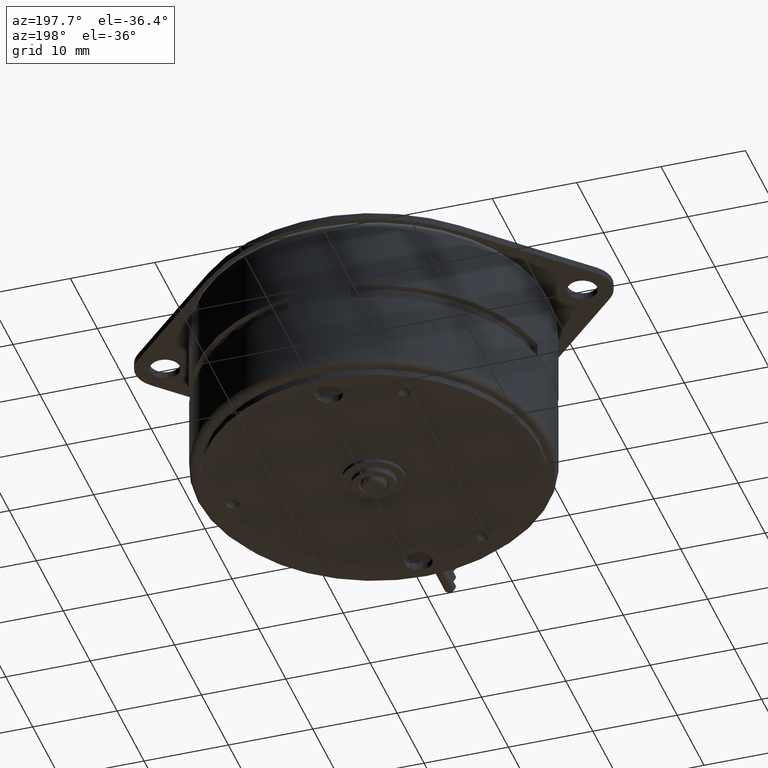
[diagram: clean part render]
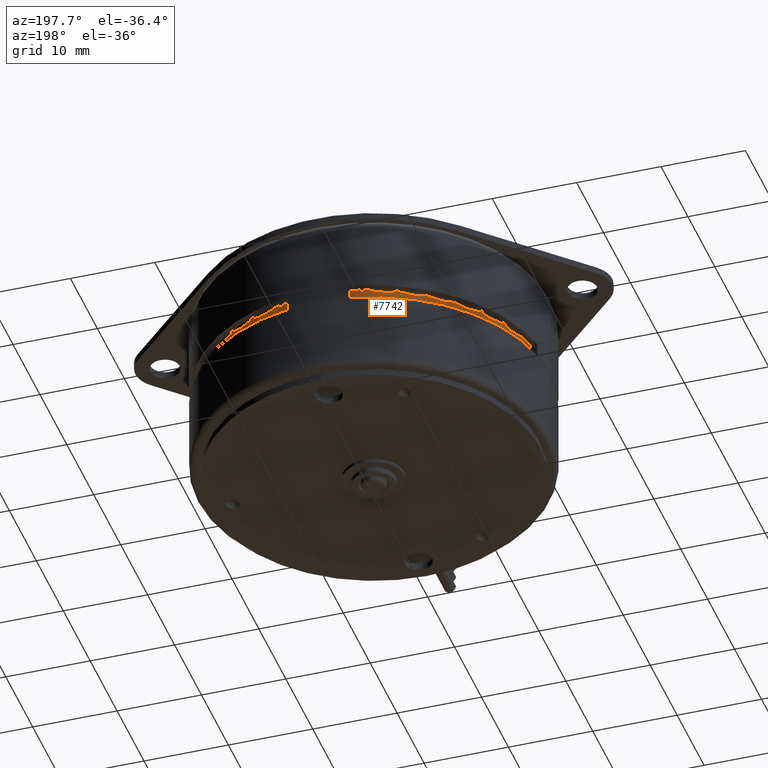
[diagram: same view with one face highlighted and labeled with its STEP entity id]
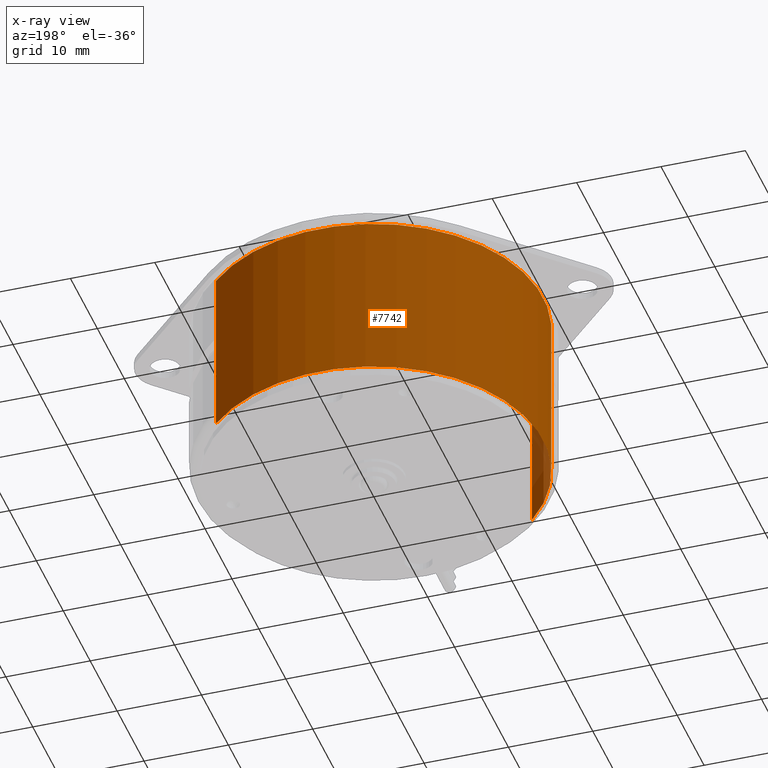
[diagram: x-ray of the same camera — body ghosted, the highlighted face saturated]
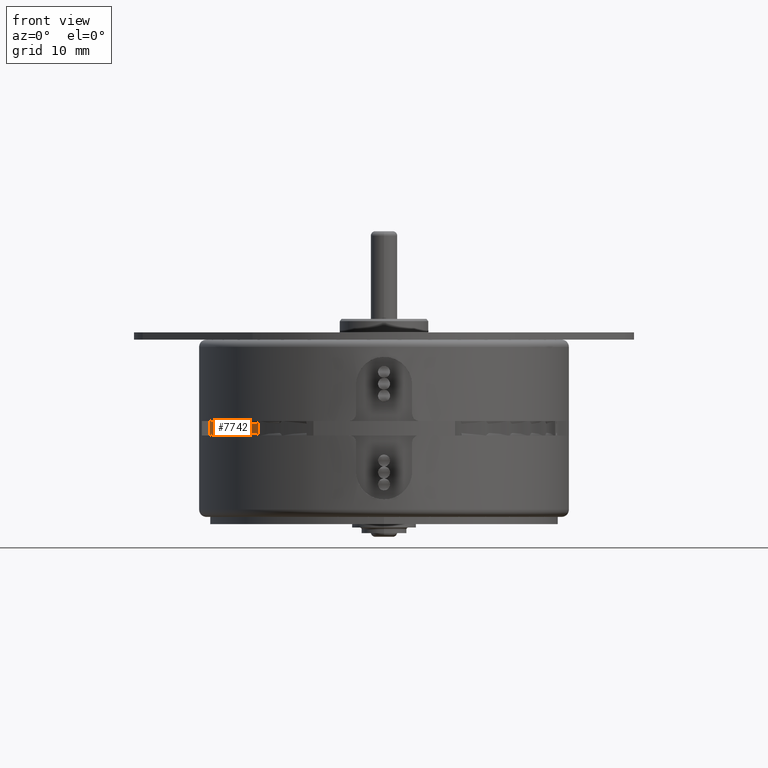
[diagram: same view with one face highlighted and labeled with its STEP entity id]
A machine part, auxiliary view. The second image highlights one B-rep face of the part: STEP entity #7742.
The next image is the same camera in x-ray: the body ghosted, the highlighted face saturated — about 1% of this face is hidden behind the body in this view.
A second angle (front view) of the same face is appended — the face is thin or edge-on in the first view.
In plain terms, the highlighted cylindrical surface (partial cylindrical patch) has radius 20.0635 mm, axis along (0, 0, -1).
Its self-contained STEP definition (entity closure, byte-faithful):
#7680=CARTESIAN_POINT('',(0.E0,0.E0,-3.2E-2));
#7681=DIRECTION('',(0.E0,0.E0,-1.E0));
#7682=DIRECTION('',(-7.071067811865E-1,-7.071067811865E-1,0.E0));
#7683=AXIS2_PLACEMENT_3D('',#7680,#7681,#7682);
#7690=DIRECTION('',(0.E0,0.E0,1.E0));
#7691=VECTOR('',#7690,7.88E-1);
#7692=CARTESIAN_POINT('',(5.585436464593E-1,5.585436464593E-1,-8.2E-1));
#7693=LINE('',#7692,#7691);
#7694=DIRECTION('',(0.E0,0.E0,1.E0));
#7695=VECTOR('',#7694,7.88E-1);
#7696=CARTESIAN_POINT('',(-5.585436464593E-1,-5.585436464593E-1,-8.2E-1));
#7697=LINE('',#7696,#7695);
#7698=CARTESIAN_POINT('',(0.E0,0.E0,-8.2E-1));
#7699=DIRECTION('',(0.E0,0.E0,1.E0));
#7700=DIRECTION('',(7.071067811865E-1,7.071067811865E-1,0.E0));
#7701=AXIS2_PLACEMENT_3D('',#7698,#7699,#7700);
#7708=CARTESIAN_POINT('',(-5.585436464593E-1,-5.585436464593E-1,-3.2E-2));
#7709=CARTESIAN_POINT('',(5.585436464593E-1,5.585436464593E-1,-3.2E-2));
#7710=VERTEX_POINT('',#7708);
#7711=VERTEX_POINT('',#7709);
#7712=CARTESIAN_POINT('',(-5.585436464593E-1,-5.585436464593E-1,-8.2E-1));
#7713=VERTEX_POINT('',#7712);
#7714=CARTESIAN_POINT('',(5.585436464593E-1,5.585436464593E-1,-8.2E-1));
#7715=VERTEX_POINT('',#7714);
#7728=CARTESIAN_POINT('',(0.E0,0.E0,-3.2E-2));
#7729=DIRECTION('',(0.E0,0.E0,-1.E0));
#7730=DIRECTION('',(-7.071067811865E-1,-7.071067811865E-1,0.E0));
#7731=AXIS2_PLACEMENT_3D('',#7728,#7729,#7730);
#7732=CYLINDRICAL_SURFACE('',#7731,7.899E-1);
#7733=ORIENTED_EDGE('',*,*,#7721,.F.);
#7735=ORIENTED_EDGE('',*,*,#7734,.F.);
#7737=ORIENTED_EDGE('',*,*,#7736,.F.);
#7739=ORIENTED_EDGE('',*,*,#7738,.T.);
#7740=EDGE_LOOP('',(#7733,#7735,#7737,#7739));
#7741=FACE_OUTER_BOUND('',#7740,.F.);
#7742=ADVANCED_FACE('',(#7741),#7732,.T.);
#7684=CIRCLE('',#7683,7.899E-1);
#7702=CIRCLE('',#7701,7.899E-1);
#7721=EDGE_CURVE('',#7710,#7711,#7684,.T.);
#7734=EDGE_CURVE('',#7713,#7710,#7697,.T.);
#7736=EDGE_CURVE('',#7715,#7713,#7702,.T.);
#7738=EDGE_CURVE('',#7715,#7711,#7693,.T.);